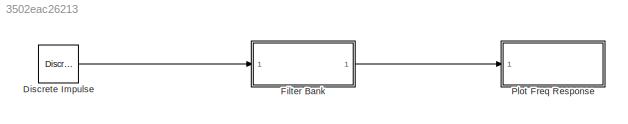
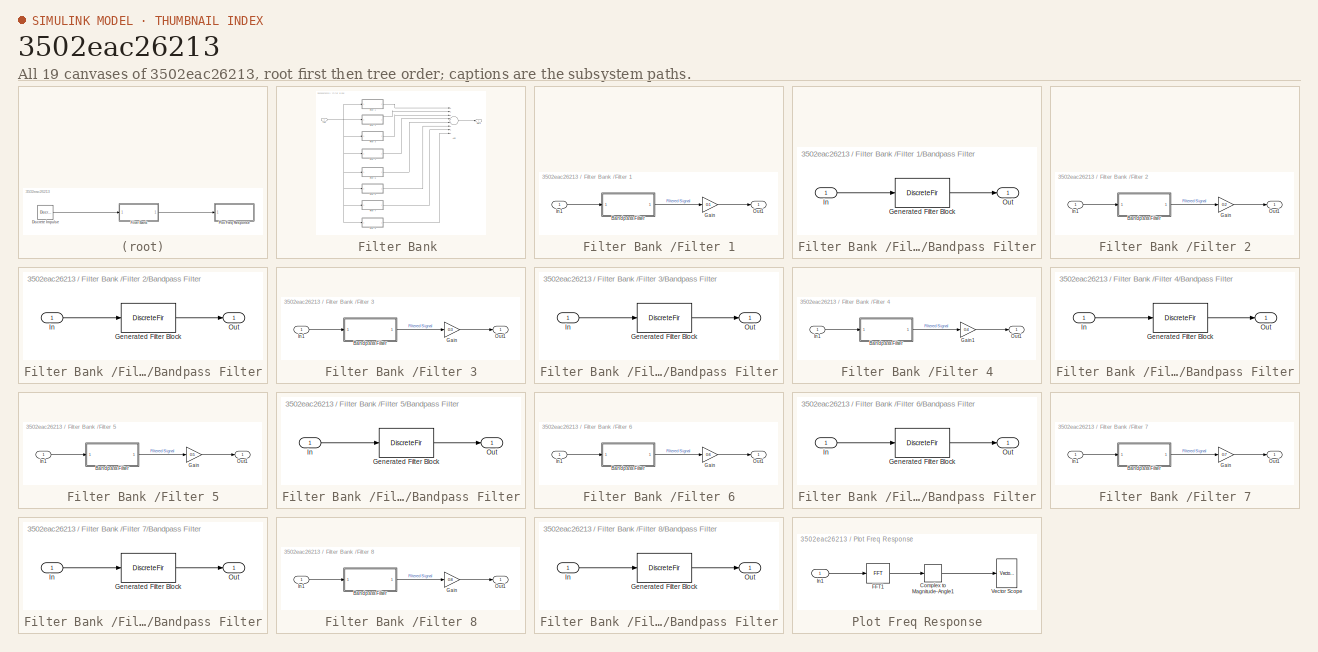
[diagram: thumbnail index - all 19 canvases of the model, root first then tree order]
MODEL slx_3502eac26213
KIND model
CONFIG AbsTol = auto
CONFIG EnableMultiTasking = off
CONFIG FixedStep = auto
CONFIG MaxStep = auto
CONFIG MinStep = auto
CONFIG RelTol = 1e-3
CONFIG SampleTimeConstraint = Unconstrained
CONFIG Solver = VariableStepAuto
CONFIG SolverName = VariableStepAuto
CONFIG StartTime = 0.0
CONFIG StopTime = 0.001
BLOCK [Reference] Discrete Impulse  REF=dspsrcs4/Discrete 
Impulse
  Ports = [0, 1]
  SourceBlock = dspsrcs4/Discrete \nImpulse
  SourceProductBaseCode = DS
  SourceProductName = DSP System Toolbox
  SourceType = Discrete Impulse
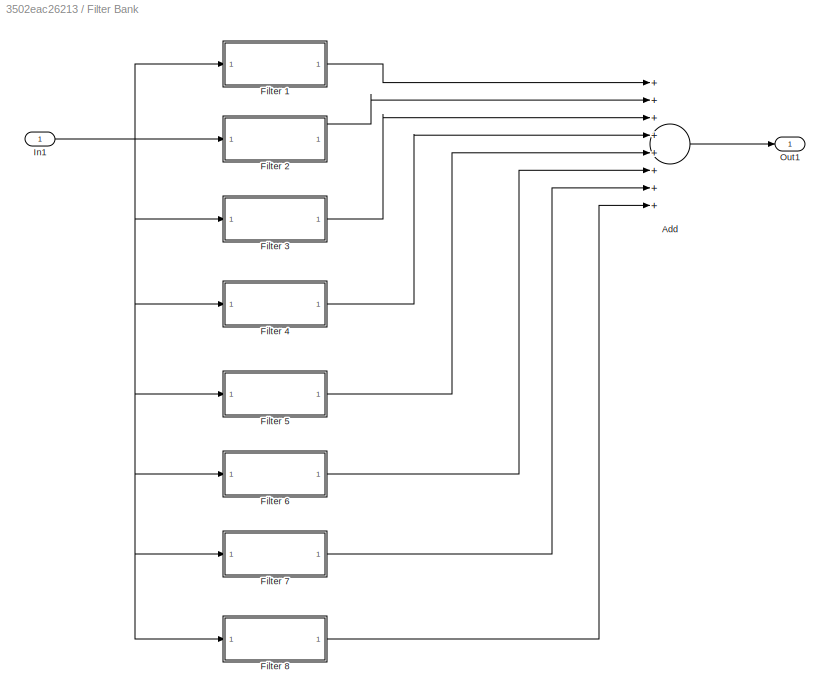
BLOCK [SubSystem] Filter Bank 
  Ports = [1, 1]
  RequestExecContextInheritance = off
BLOCK [Sum] Filter Bank /Add
  InputSameDT = off
  Inputs = ++++++++
  OutDataTypeStr = Inherit: Inherit via internal rule
  Ports = [8, 1]
  SaturateOnIntegerOverflow = off
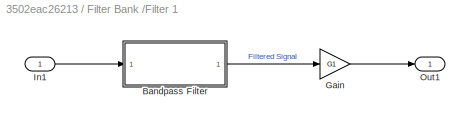
BLOCK [SubSystem] Filter Bank /Filter 1
  Ports = [1, 1]
  RequestExecContextInheritance = off
BLOCK [SubSystem] Filter Bank /Filter 1/Bandpass Filter
  CopyFcn = fdesignblkfcn(gcbh, {'CopyFcn'});
  DialogController = fdesignblkfcn
  InitFcn = fdesignblkfcn(gcbh, {'InitFcn'});
  Ports = [1, 1]
  RequestExecContextInheritance = off
  UserDataPersistent = on
BLOCK [DiscreteFir] Filter Bank /Filter 1/Bandpass Filter/Generated Filter Block
  Coefficients = [-0.288095935880251341 0.0525413418793297254 0.0469661528164785833 0.0413638961371985137 0.035743441875384814 0.0302610985045535484 0.0249161502944590801 0.0198560448668691492 0.0150617771881191003 0.010666253622455062 0.00662957256733126641 0.00307310029519767408 -7.12960758679805751e-05 -0.00269835686235154635 -0.00489597889786988483 -0.00657724977724275309 -0.00785309685969738311 -0.00864490861...<+13651ch>
  InputPortMap = u0
  InputProcessing = Columns as channels (frame based)
  OutputPortMap = o0
  Ports = [1, 1]
  Tag = BlockMethodSubSystem
BLOCK [Inport] Filter Bank /Filter 1/Bandpass Filter/In
  IconDisplay = Port number
BLOCK [Outport] Filter Bank /Filter 1/Bandpass Filter/Out
  IconDisplay = Port number
BLOCK [Gain] Filter Bank /Filter 1/Gain
  Gain = G1
  OutDataTypeStr = Inherit: Inherit via internal rule
  ParamDataTypeStr = Inherit: Inherit via internal rule
  SaturateOnIntegerOverflow = off
BLOCK [Inport] Filter Bank /Filter 1/In1
  IconDisplay = Port number
BLOCK [Outport] Filter Bank /Filter 1/Out1
  IconDisplay = Port number
BLOCK [SubSystem] Filter Bank /Filter 2
  Ports = [1, 1]
  RequestExecContextInheritance = off
BLOCK [SubSystem] Filter Bank /Filter 2/Bandpass Filter
  CopyFcn = fdesignblkfcn(gcbh, {'CopyFcn'});
  DialogController = fdesignblkfcn
  InitFcn = fdesignblkfcn(gcbh, {'InitFcn'});
  Ports = [1, 1]
  RequestExecContextInheritance = off
  UserDataPersistent = on
BLOCK [DiscreteFir] Filter Bank /Filter 2/Bandpass Filter/Generated Filter Block
  Coefficients = [0.0309918975999502432 -0.00346529452660930201 -0.00327768702863377726 -0.00308464127549961525 -0.00289652040207664246 -0.00268907563849799663 -0.00247512177193306981 -0.00223487476573661775 -0.00199009889114106636 -0.0017289884264930222 -0.0014863118531130079 -0.00125607889818925289 -0.00108386333736471691 -0.000960511740503544598 -0.000938888464479654961 -0.000986049090455784483 -0.0011702296578...<+8909ch>
  InputPortMap = u0
  InputProcessing = Columns as channels (frame based)
  OutputPortMap = o0
  Ports = [1, 1]
  Tag = BlockMethodSubSystem
BLOCK [Inport] Filter Bank /Filter 2/Bandpass Filter/In
  IconDisplay = Port number
BLOCK [Outport] Filter Bank /Filter 2/Bandpass Filter/Out
  IconDisplay = Port number
BLOCK [Gain] Filter Bank /Filter 2/Gain
  Gain = G2
  OutDataTypeStr = Inherit: Inherit via internal rule
  ParamDataTypeStr = Inherit: Inherit via internal rule
  SaturateOnIntegerOverflow = off
BLOCK [Inport] Filter Bank /Filter 2/In1
  IconDisplay = Port number
BLOCK [Outport] Filter Bank /Filter 2/Out1
  IconDisplay = Port number
BLOCK [SubSystem] Filter Bank /Filter 3
  Ports = [1, 1]
  RequestExecContextInheritance = off
BLOCK [SubSystem] Filter Bank /Filter 3/Bandpass Filter
  CopyFcn = fdesignblkfcn(gcbh, {'CopyFcn'});
  DialogController = fdesignblkfcn
  InitFcn = fdesignblkfcn(gcbh, {'InitFcn'});
  Ports = [1, 1]
  RequestExecContextInheritance = off
  UserDataPersistent = on
BLOCK [DiscreteFir] Filter Bank /Filter 3/Bandpass Filter/Generated Filter Block
  Coefficients = [-0.0143532191975071794 0.0140053564122176229 0.00322487723732657605 -0.00341994842022029857 -0.00591206696740772739 -0.00507011043985050591 -0.0020869052544945782 0.00177518006656209038 0.00540121088137151054 0.00793552453768436167 0.00888969845469469305 0.0081749123586929949 0.00611628690310949893 0.00334148345787728396 0.000625906556626840832 -0.0013519514579631263 -0.00220138645705957731 -0.00...<+4765ch>
  InputPortMap = u0
  InputProcessing = Columns as channels (frame based)
  OutputPortMap = o0
  Ports = [1, 1]
  Tag = BlockMethodSubSystem
BLOCK [Inport] Filter Bank /Filter 3/Bandpass Filter/In
  IconDisplay = Port number
BLOCK [Outport] Filter Bank /Filter 3/Bandpass Filter/Out
  IconDisplay = Port number
BLOCK [Gain] Filter Bank /Filter 3/Gain
  Gain = G3
  OutDataTypeStr = Inherit: Inherit via internal rule
  ParamDataTypeStr = Inherit: Inherit via internal rule
  SaturateOnIntegerOverflow = off
BLOCK [Inport] Filter Bank /Filter 3/In1
  IconDisplay = Port number
BLOCK [Outport] Filter Bank /Filter 3/Out1
  IconDisplay = Port number
BLOCK [SubSystem] Filter Bank /Filter 4
  Ports = [1, 1]
  RequestExecContextInheritance = off
BLOCK [SubSystem] Filter Bank /Filter 4/Bandpass Filter
  CopyFcn = fdesignblkfcn(gcbh, {'CopyFcn'});
  DialogController = fdesignblkfcn
  InitFcn = fdesignblkfcn(gcbh, {'InitFcn'});
  Ports = [1, 1]
  RequestExecContextInheritance = off
  UserDataPersistent = on
BLOCK [DiscreteFir] Filter Bank /Filter 4/Bandpass Filter/Generated Filter Block
  Coefficients = [0.0317027107068188971 0.00296912290738690372 -0.00273776081140421866 -0.00444938667259767075 -0.00173124240113138508 -0.00113663588381978189 -0.00585025491091577341 -0.00942768623505964125 -0.00424493210924422552 0.00658839504220370877 0.0114361670770268247 0.00522817453184396853 -0.00357354262483853798 -0.00453931373725491565 0.000145959474470844236 -0.000533231544595035847 -0.009186795386540942...<+1936ch>
  InputPortMap = u0
  InputProcessing = Columns as channels (frame based)
  OutputPortMap = o0
  Ports = [1, 1]
  Tag = BlockMethodSubSystem
BLOCK [Inport] Filter Bank /Filter 4/Bandpass Filter/In
  IconDisplay = Port number
BLOCK [Outport] Filter Bank /Filter 4/Bandpass Filter/Out
  IconDisplay = Port number
BLOCK [Gain] Filter Bank /Filter 4/Gain1
  Gain = G4
  OutDataTypeStr = Inherit: Inherit via internal rule
  ParamDataTypeStr = Inherit: Inherit via internal rule
  SaturateOnIntegerOverflow = off
BLOCK [Inport] Filter Bank /Filter 4/In1
  IconDisplay = Port number
BLOCK [Outport] Filter Bank /Filter 4/Out1
  IconDisplay = Port number
BLOCK [SubSystem] Filter Bank /Filter 5
  Ports = [1, 1]
  RequestExecContextInheritance = off
BLOCK [SubSystem] Filter Bank /Filter 5/Bandpass Filter
  CopyFcn = fdesignblkfcn(gcbh, {'CopyFcn'});
  DialogController = fdesignblkfcn
  InitFcn = fdesignblkfcn(gcbh, {'InitFcn'});
  Ports = [1, 1]
  RequestExecContextInheritance = off
  UserDataPersistent = on
BLOCK [DiscreteFir] Filter Bank /Filter 5/Bandpass Filter/Generated Filter Block
  Coefficients = [0.0326732231541482787 0.000390085683877424935 -0.00670927791321010176 0.000605921827593647625 0.00123859830126694655 0.000375200485484838487 0.00448384322372992819 0.000288098548715514898 -0.0108708572148590449 0.000561363559299206719 0.0113390583561961515 0.0004497822502392516 -0.00766228091096959624 0.000236985497879628471 -0.00213816414464076824 0.000485639836585969719 0.0109146397263644966 0....<+1944ch>
  InputPortMap = u0
  InputProcessing = Columns as channels (frame based)
  OutputPortMap = o0
  Ports = [1, 1]
  Tag = BlockMethodSubSystem
BLOCK [Inport] Filter Bank /Filter 5/Bandpass Filter/In
  IconDisplay = Port number
BLOCK [Outport] Filter Bank /Filter 5/Bandpass Filter/Out
  IconDisplay = Port number
BLOCK [Gain] Filter Bank /Filter 5/Gain
  Gain = G5
  OutDataTypeStr = Inherit: Inherit via internal rule
  ParamDataTypeStr = Inherit: Inherit via internal rule
  SaturateOnIntegerOverflow = off
BLOCK [Inport] Filter Bank /Filter 5/In1
  IconDisplay = Port number
BLOCK [Outport] Filter Bank /Filter 5/Out1
  IconDisplay = Port number
BLOCK [SubSystem] Filter Bank /Filter 6
  Ports = [1, 1]
  RequestExecContextInheritance = off
BLOCK [SubSystem] Filter Bank /Filter 6/Bandpass Filter
  CopyFcn = fdesignblkfcn(gcbh, {'CopyFcn'});
  DialogController = fdesignblkfcn
  InitFcn = fdesignblkfcn(gcbh, {'InitFcn'});
  Ports = [1, 1]
  RequestExecContextInheritance = off
  UserDataPersistent = on
BLOCK [DiscreteFir] Filter Bank /Filter 6/Bandpass Filter/Generated Filter Block
  Coefficients = [-0.0299380034699614703 -0.00247053918462761604 0.00309964910196888072 -0.002911183051430212 0.00244203855890926663 -0.00278217532764521783 0.00331042991896847959 -0.00221217721175926037 -0.000282569252494490469 0.000989793467503130922 0.00220967307455731399 -0.00636592759066903924 0.00595651346285416133 -5.38432993041596149e-05 -0.00517507947373568519 0.00323203272160370054 0.00435094467552247198...<+4199ch>
  InputPortMap = u0
  InputProcessing = Columns as channels (frame based)
  OutputPortMap = o0
  Ports = [1, 1]
  Tag = BlockMethodSubSystem
BLOCK [Inport] Filter Bank /Filter 6/Bandpass Filter/In
  IconDisplay = Port number
BLOCK [Outport] Filter Bank /Filter 6/Bandpass Filter/Out
  IconDisplay = Port number
BLOCK [Gain] Filter Bank /Filter 6/Gain
  Gain = G6
  OutDataTypeStr = Inherit: Inherit via internal rule
  ParamDataTypeStr = Inherit: Inherit via internal rule
  SaturateOnIntegerOverflow = off
BLOCK [Inport] Filter Bank /Filter 6/In1
  IconDisplay = Port number
BLOCK [Outport] Filter Bank /Filter 6/Out1
  IconDisplay = Port number
BLOCK [SubSystem] Filter Bank /Filter 7
  Ports = [1, 1]
  RequestExecContextInheritance = off
BLOCK [SubSystem] Filter Bank /Filter 7/Bandpass Filter
  CopyFcn = fdesignblkfcn(gcbh, {'CopyFcn'});
  DialogController = fdesignblkfcn
  InitFcn = fdesignblkfcn(gcbh, {'InitFcn'});
  Ports = [1, 1]
  RequestExecContextInheritance = off
  UserDataPersistent = on
BLOCK [DiscreteFir] Filter Bank /Filter 7/Bandpass Filter/Generated Filter Block
  Coefficients = [0.00857375745233986825 -0.0262726370509678599 -0.00974647616296401773 -0.00439060024736811268 0.00283263673597632885 -0.00300721003000267066 -6.2733861075844427e-05 0.00296135556060779037 -0.00404500810835179032 0.00223751069246359239 0.00138756604038855536 -0.00436312984074752833 0.00442339639727916487 -0.00121770484220593369 -0.00320512214454504512 0.00568093053665862796 -0.00419610981840044979...<+4549ch>
  InputPortMap = u0
  InputProcessing = Columns as channels (frame based)
  OutputPortMap = o0
  Ports = [1, 1]
  Tag = BlockMethodSubSystem
BLOCK [Inport] Filter Bank /Filter 7/Bandpass Filter/In
  IconDisplay = Port number
BLOCK [Outport] Filter Bank /Filter 7/Bandpass Filter/Out
  IconDisplay = Port number
BLOCK [Gain] Filter Bank /Filter 7/Gain
  Gain = G7
  OutDataTypeStr = Inherit: Inherit via internal rule
  ParamDataTypeStr = Inherit: Inherit via internal rule
  SaturateOnIntegerOverflow = off
BLOCK [Inport] Filter Bank /Filter 7/In1
  IconDisplay = Port number
BLOCK [Outport] Filter Bank /Filter 7/Out1
  IconDisplay = Port number
BLOCK [SubSystem] Filter Bank /Filter 8
  Ports = [1, 1]
  RequestExecContextInheritance = off
BLOCK [SubSystem] Filter Bank /Filter 8/Bandpass Filter
  CopyFcn = fdesignblkfcn(gcbh, {'CopyFcn'});
  DialogController = fdesignblkfcn
  InitFcn = fdesignblkfcn(gcbh, {'InitFcn'});
  Ports = [1, 1]
  RequestExecContextInheritance = off
  UserDataPersistent = on
BLOCK [DiscreteFir] Filter Bank /Filter 8/Bandpass Filter/Generated Filter Block
  Coefficients = [-0.0251791761247325829 -0.0102217576550982514 0.00641945090901670581 -0.00334354163827728411 0.00185213720214450102 -0.00220643402249874956 0.0039174982369860516 -0.00591114357840174642 0.00694248727990195817 -0.00615618376626782086 0.00354039053172731542 -2.74576649316574658e-05 -0.00286600194798258476 0.003747019727223072 -0.0020873364370468479 -0.00140275635090877514 0.0050148908778130533 -0.0...<+4555ch>
  InputPortMap = u0
  InputProcessing = Columns as channels (frame based)
  OutputPortMap = o0
  Ports = [1, 1]
  Tag = BlockMethodSubSystem
BLOCK [Inport] Filter Bank /Filter 8/Bandpass Filter/In
  IconDisplay = Port number
BLOCK [Outport] Filter Bank /Filter 8/Bandpass Filter/Out
  IconDisplay = Port number
BLOCK [Gain] Filter Bank /Filter 8/Gain
  Gain = G8
  OutDataTypeStr = Inherit: Inherit via internal rule
  ParamDataTypeStr = Inherit: Inherit via internal rule
  SaturateOnIntegerOverflow = off
BLOCK [Inport] Filter Bank /Filter 8/In1
  IconDisplay = Port number
BLOCK [Outport] Filter Bank /Filter 8/Out1
  IconDisplay = Port number
BLOCK [Inport] Filter Bank /In1
  IconDisplay = Port number
BLOCK [Outport] Filter Bank /Out1
  IconDisplay = Port number
BLOCK [SubSystem] Plot Freq Response
  Ports = [1]
  RequestExecContextInheritance = off
BLOCK [ComplexToMagnitudeAngle] Plot Freq Response/Complex to Magnitude-Angle1
  Output = Magnitude
  Ports = [1, 1]
BLOCK [Reference] Plot Freq Response/FFT1  REF=dspxfrm3/FFT
  Ports = [1, 1]
  SourceBlock = dspxfrm3/FFT
  SourceProductBaseCode = DS
  SourceProductName = DSP System Toolbox
  SourceType = FFT
BLOCK [Inport] Plot Freq Response/In1
  IconDisplay = Port number
BLOCK [Reference] Plot Freq Response/Vector Scope  REF=dspobslib/Vector
Scope
  Ports = [1]
  SourceBlock = dspobslib/Vector\nScope
  SourceProductBaseCode = DS
  SourceProductName = DSP System Toolbox
  SourceType = Vector Scope
LINE Discrete Impulse:1 -> Filter Bank :1
LINE Filter Bank /Add:1 -> Filter Bank /Out1:1
LINE Filter Bank /Filter 1/Bandpass Filter:1 -> Filter Bank /Filter 1/Gain:1
LINE Filter Bank /Filter 1/Gain:1 -> Filter Bank /Filter 1/Out1:1
LINE Filter Bank /Filter 1/In1:1 -> Filter Bank /Filter 1/Bandpass Filter:1
LINE Filter Bank /Filter 1:1 -> Filter Bank /Add:1
LINE Filter Bank /Filter 2/Bandpass Filter:1 -> Filter Bank /Filter 2/Gain:1
LINE Filter Bank /Filter 2/Gain:1 -> Filter Bank /Filter 2/Out1:1
LINE Filter Bank /Filter 2/In1:1 -> Filter Bank /Filter 2/Bandpass Filter:1
LINE Filter Bank /Filter 2:1 -> Filter Bank /Add:2
LINE Filter Bank /Filter 3/Bandpass Filter:1 -> Filter Bank /Filter 3/Gain:1
LINE Filter Bank /Filter 3/Gain:1 -> Filter Bank /Filter 3/Out1:1
LINE Filter Bank /Filter 3/In1:1 -> Filter Bank /Filter 3/Bandpass Filter:1
LINE Filter Bank /Filter 3:1 -> Filter Bank /Add:3
LINE Filter Bank /Filter 4/Bandpass Filter:1 -> Filter Bank /Filter 4/Gain1:1
LINE Filter Bank /Filter 4/Gain1:1 -> Filter Bank /Filter 4/Out1:1
LINE Filter Bank /Filter 4/In1:1 -> Filter Bank /Filter 4/Bandpass Filter:1
LINE Filter Bank /Filter 4:1 -> Filter Bank /Add:4
LINE Filter Bank /Filter 5/Bandpass Filter:1 -> Filter Bank /Filter 5/Gain:1
LINE Filter Bank /Filter 5/Gain:1 -> Filter Bank /Filter 5/Out1:1
LINE Filter Bank /Filter 5/In1:1 -> Filter Bank /Filter 5/Bandpass Filter:1
LINE Filter Bank /Filter 5:1 -> Filter Bank /Add:5
LINE Filter Bank /Filter 6/Bandpass Filter:1 -> Filter Bank /Filter 6/Gain:1
LINE Filter Bank /Filter 6/Gain:1 -> Filter Bank /Filter 6/Out1:1
LINE Filter Bank /Filter 6/In1:1 -> Filter Bank /Filter 6/Bandpass Filter:1
LINE Filter Bank /Filter 6:1 -> Filter Bank /Add:6
LINE Filter Bank /Filter 7/Bandpass Filter:1 -> Filter Bank /Filter 7/Gain:1
LINE Filter Bank /Filter 7/Gain:1 -> Filter Bank /Filter 7/Out1:1
LINE Filter Bank /Filter 7/In1:1 -> Filter Bank /Filter 7/Bandpass Filter:1
LINE Filter Bank /Filter 7:1 -> Filter Bank /Add:7
LINE Filter Bank /Filter 8/Bandpass Filter:1 -> Filter Bank /Filter 8/Gain:1
LINE Filter Bank /Filter 8/Gain:1 -> Filter Bank /Filter 8/Out1:1
LINE Filter Bank /Filter 8/In1:1 -> Filter Bank /Filter 8/Bandpass Filter:1
LINE Filter Bank /Filter 8:1 -> Filter Bank /Add:8
NET Filter Bank /In1:1 -> Filter Bank /Filter 1:1, Filter Bank /Filter 2:1, Filter Bank /Filter 3:1, Filter Bank /Filter 4:1, Filter Bank /Filter 5:1, Filter Bank /Filter 6:1, Filter Bank /Filter 7:1, Filter Bank /Filter 8:1
LINE Filter Bank :1 -> Plot Freq Response:1
LINE Plot Freq Response/Complex to Magnitude-Angle1:1 -> Plot Freq Response/Vector Scope:1
LINE Plot Freq Response/FFT1:1 -> Plot Freq Response/Complex to Magnitude-Angle1:1
LINE Plot Freq Response/In1:1 -> Plot Freq Response/FFT1:1
note: NET lines group one-source signal fan-out (src -> all destinations, sorted); 1:1 wires keep LINE
